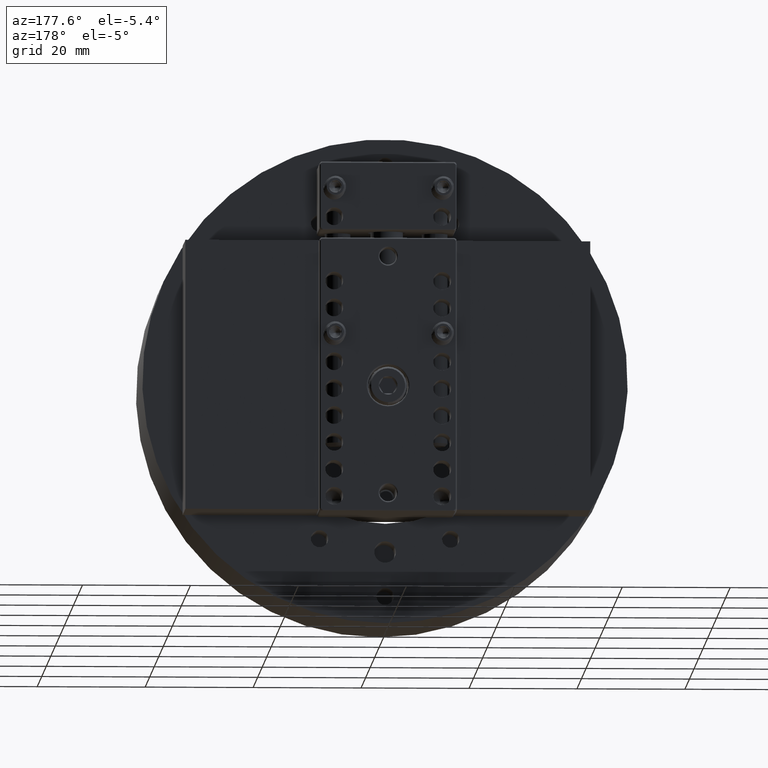
[diagram: clean part render]
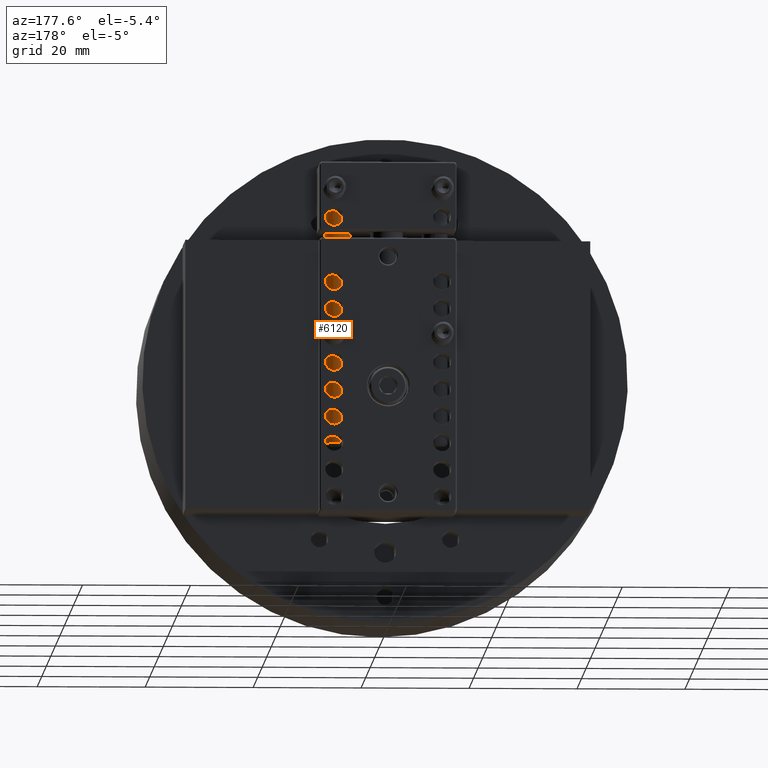
[diagram: same view with one face highlighted and labeled with its STEP entity id]
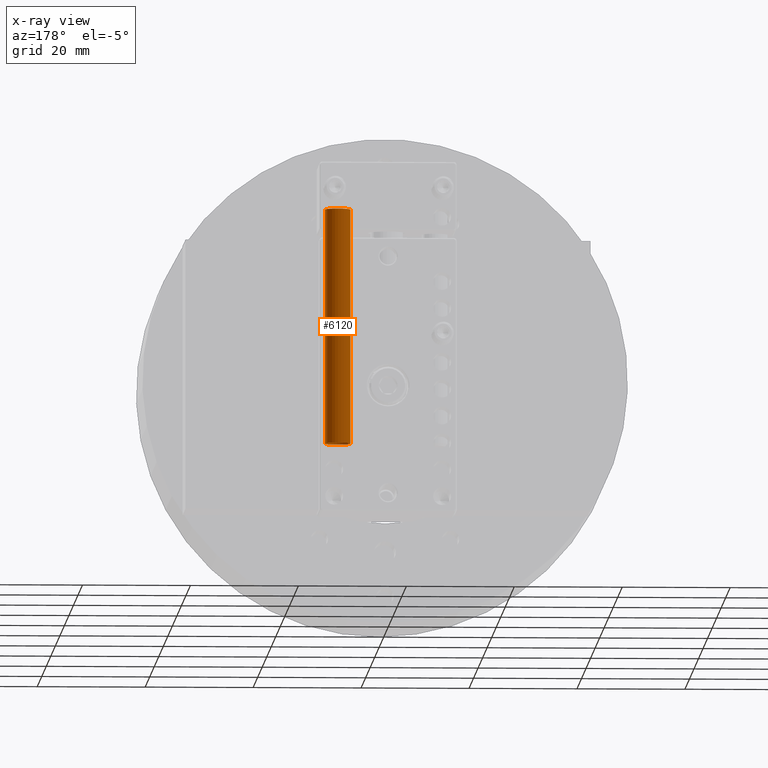
[diagram: x-ray of the same camera — body ghosted, the highlighted face saturated]
A machine part, auxiliary view. The second image highlights one B-rep face of the part: STEP entity #6120.
The next image is the same camera in x-ray: the body ghosted, the highlighted face saturated — about 0% of this face is hidden behind the body in this view.
In plain terms, the highlighted cylindrical surface (bore or boss wall) has radius 2.3812 mm, axis along (0, -0, -1).
Its self-contained STEP definition (entity closure, byte-faithful):
#1032=FACE_OUTER_BOUND('',#1458,.T.);
#1458=EDGE_LOOP('',(#5480,#5481,#5482,#5483,#5484));
#1833=LINE('',#22010,#2166);
#2166=VECTOR('',#8226,0.09375);
#2425=CIRCLE('',#6713,0.09375);
#2427=CIRCLE('',#6716,0.09375);
#2428=CIRCLE('',#6717,0.09375);
#2973=VERTEX_POINT('',#21996);
#2975=VERTEX_POINT('',#22002);
#2976=VERTEX_POINT('',#22003);
#3813=EDGE_CURVE('',#2973,#2973,#2425,.T.);
#3816=EDGE_CURVE('',#2975,#2976,#2427,.T.);
#3817=EDGE_CURVE('',#2976,#2975,#2428,.T.);
#3820=EDGE_CURVE('',#2975,#2973,#1833,.T.);
#5480=ORIENTED_EDGE('',*,*,#3816,.T.);
#5481=ORIENTED_EDGE('',*,*,#3817,.T.);
#5482=ORIENTED_EDGE('',*,*,#3820,.T.);
#5483=ORIENTED_EDGE('',*,*,#3813,.T.);
#5484=ORIENTED_EDGE('',*,*,#3820,.F.);
#5781=CYLINDRICAL_SURFACE('',#6719,0.09375);
#6120=ADVANCED_FACE('',(#1032),#5781,.T.);
#6713=AXIS2_PLACEMENT_3D('',#21997,#8210,#8211);
#6716=AXIS2_PLACEMENT_3D('',#22004,#8217,#8218);
#6717=AXIS2_PLACEMENT_3D('',#22005,#8219,#8220);
#6719=AXIS2_PLACEMENT_3D('',#22009,#8224,#8225);
#8210=DIRECTION('center_axis',(1.,0.,0.));
#8211=DIRECTION('ref_axis',(0.,0.,-1.));
#8217=DIRECTION('center_axis',(-1.,0.,0.));
#8218=DIRECTION('ref_axis',(0.,0.,-1.));
#8219=DIRECTION('center_axis',(-1.,0.,0.));
#8220=DIRECTION('ref_axis',(0.,0.,-1.));
#8224=DIRECTION('center_axis',(1.,0.,0.));
#8225=DIRECTION('ref_axis',(0.,0.,-1.));
#8226=DIRECTION('',(-1.,0.,0.));
#21996=CARTESIAN_POINT('',(-0.85625,-1.14810637420064E-17,0.09375));
#21997=CARTESIAN_POINT('Origin',(-0.85625,0.,0.));
#22002=CARTESIAN_POINT('',(0.85625,1.14806845670848E-17,0.09375));
#22003=CARTESIAN_POINT('',(0.85625,-1.14810637420064E-17,-0.0937500000000001));
#22004=CARTESIAN_POINT('Origin',(0.85625,0.,0.));
#22005=CARTESIAN_POINT('Origin',(0.85625,0.,0.));
#22009=CARTESIAN_POINT('Origin',(-0.875,0.,0.));
#22010=CARTESIAN_POINT('',(-0.875,-1.14810637420064E-17,0.09375));